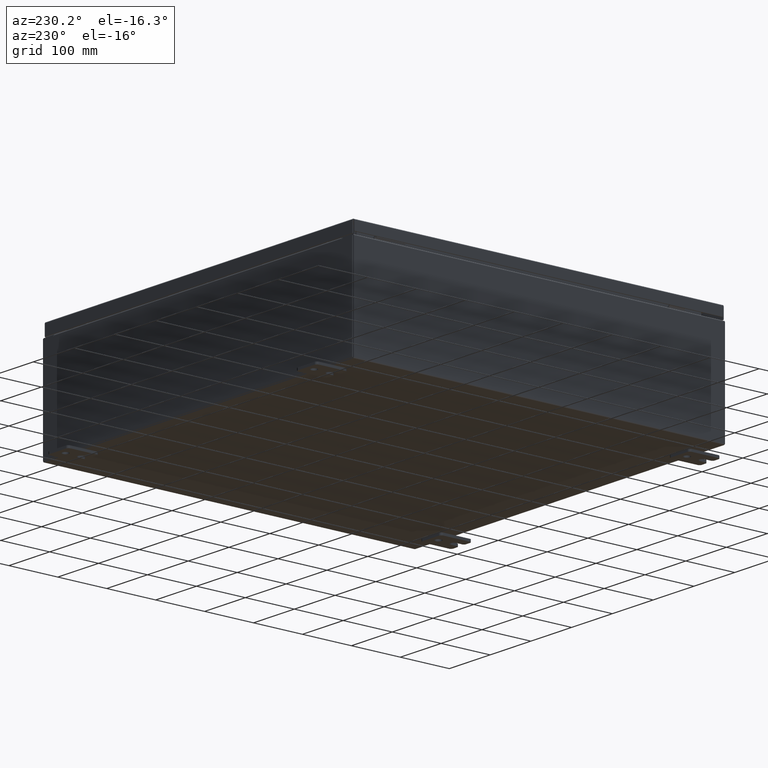
[diagram: clean part render]
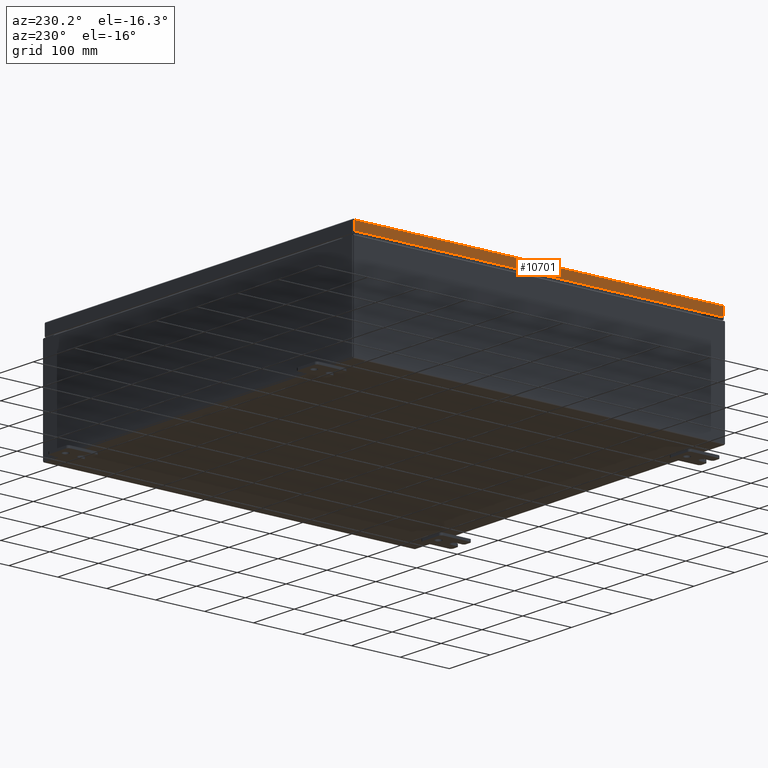
[diagram: same view with one face highlighted and labeled with its STEP entity id]
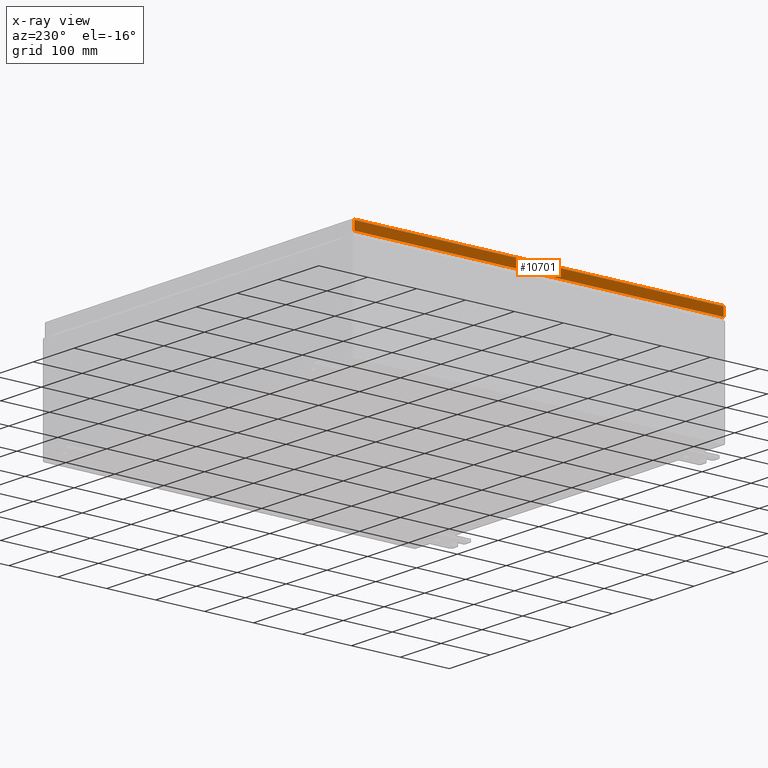
[diagram: x-ray of the same camera — body ghosted, the highlighted face saturated]
A machine part, auxiliary view. The second image highlights one B-rep face of the part: STEP entity #10701.
The next image is the same camera in x-ray: the body ghosted, the highlighted face saturated — about 0% of this face is hidden behind the body in this view.
In plain terms, the highlighted planar face has unit normal (1, 0, -0).
Its self-contained STEP definition (entity closure, byte-faithful):
#902 = ORIENTED_EDGE ( 'NONE', *, *, #61297, .F. ) ;
#1359 = LINE ( 'NONE', #18362, #14902 ) ;
#3311 = LINE ( 'NONE', #24967, #42153 ) ;
#4405 = CARTESIAN_POINT ( 'NONE',  ( -14.93749999999999800, -5.594913881248409300E-030, 4.558301763253239600E-014 ) ) ;
#9721 = PLANE ( 'NONE',  #53244 ) ;
#9912 = LINE ( 'NONE', #65734, #47151 ) ;
#9997 = CARTESIAN_POINT ( 'NONE',  ( -14.93750000000000000, 14.84865786437627300, -0.7949999999999960400 ) ) ;
#10032 = EDGE_CURVE ( 'NONE', #11123, #44188, #3311, .T. ) ;
#10701 = ADVANCED_FACE ( 'NONE', ( #27947 ), #9721, .F. ) ;
#11123 = VERTEX_POINT ( 'NONE', #23214 ) ;
#12000 = ORIENTED_EDGE ( 'NONE', *, *, #29449, .F. ) ;
#14902 = VECTOR ( 'NONE', #48648, 39.37007874015748100 ) ;
#16126 = DIRECTION ( 'NONE',  ( 4.379057701015054300E-047, 1.000000000000000000, 1.234475243998914400E-016 ) ) ;
#17582 = EDGE_CURVE ( 'NONE', #37750, #58608, #1359, .T. ) ;
#18362 = CARTESIAN_POINT ( 'NONE',  ( -14.93749999999999800, 14.84865786437626900, 1.492706413132045700E-013 ) ) ;
#19837 = DIRECTION ( 'NONE',  ( -3.034122441942816500E-015, 6.982962677686265900E-015, -1.000000000000000000 ) ) ;
#23214 = CARTESIAN_POINT ( 'NONE',  ( -14.93749999999999800, -14.84865786437626400, -0.08770000000000007000 ) ) ;
#24967 = CARTESIAN_POINT ( 'NONE',  ( -14.93749999999999800, -14.84865786437626800, -0.07469999999999976700 ) ) ;
#25095 = DIRECTION ( 'NONE',  ( -3.034122441942816500E-015, 0.0000000000000000000, -1.000000000000000000 ) ) ;
#26573 = CARTESIAN_POINT ( 'NONE',  ( -14.93750000000000000, -14.93749999999999800, -0.7949999999999997100 ) ) ;
#27947 = FACE_OUTER_BOUND ( 'NONE', #55419, .T. ) ;
#29449 = EDGE_CURVE ( 'NONE', #37750, #11123, #9912, .T. ) ;
#31230 = CARTESIAN_POINT ( 'NONE',  ( -14.93749999999999800, 14.84865786437626900, -0.08770000000000004200 ) ) ;
#37750 = VERTEX_POINT ( 'NONE', #31230 ) ;
#42153 = VECTOR ( 'NONE', #19837, 39.37007874015748100 ) ;
#42464 = CARTESIAN_POINT ( 'NONE',  ( -14.93750000000000000, -14.84865786437626200, -0.7949999999999996000 ) ) ;
#44188 = VERTEX_POINT ( 'NONE', #42464 ) ;
#45567 = DIRECTION ( 'NONE',  ( 3.745549041839940000E-031, -1.000000000000000000, -1.104117517615176400E-045 ) ) ;
#47151 = VECTOR ( 'NONE', #45567, 39.37007874015748100 ) ;
#48266 = LINE ( 'NONE', #26573, #60137 ) ;
#48648 = DIRECTION ( 'NONE',  ( -3.034122441942816500E-015, 6.982962677686265900E-015, -1.000000000000000000 ) ) ;
#53244 = AXIS2_PLACEMENT_3D ( 'NONE', #4405, #55410, #25095 ) ;
#54788 = ORIENTED_EDGE ( 'NONE', *, *, #17582, .T. ) ;
#55410 = DIRECTION ( 'NONE',  ( 1.000000000000000000, 3.745549041839939100E-031, -3.034122441942816500E-015 ) ) ;
#55419 = EDGE_LOOP ( 'NONE', ( #12000, #54788, #902, #60041 ) ) ;
#58608 = VERTEX_POINT ( 'NONE', #9997 ) ;
#60041 = ORIENTED_EDGE ( 'NONE', *, *, #10032, .F. ) ;
#60137 = VECTOR ( 'NONE', #16126, 39.37007874015748100 ) ;
#61297 = EDGE_CURVE ( 'NONE', #44188, #58608, #48266, .T. ) ;
#65734 = CARTESIAN_POINT ( 'NONE',  ( -14.93749999999999800, -14.93749999999999800, -0.08770000000000004200 ) ) ;